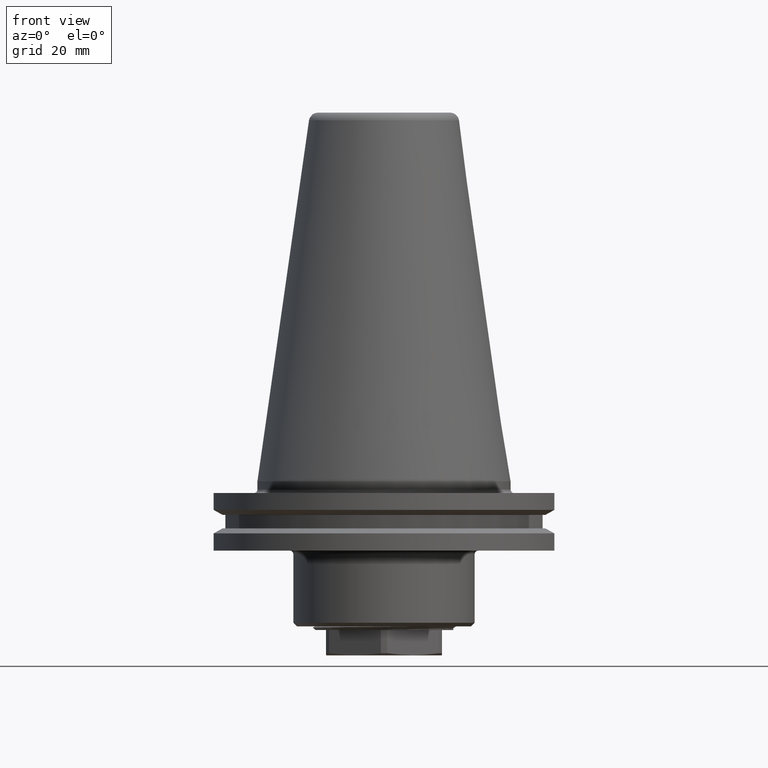
[diagram: clean part render]
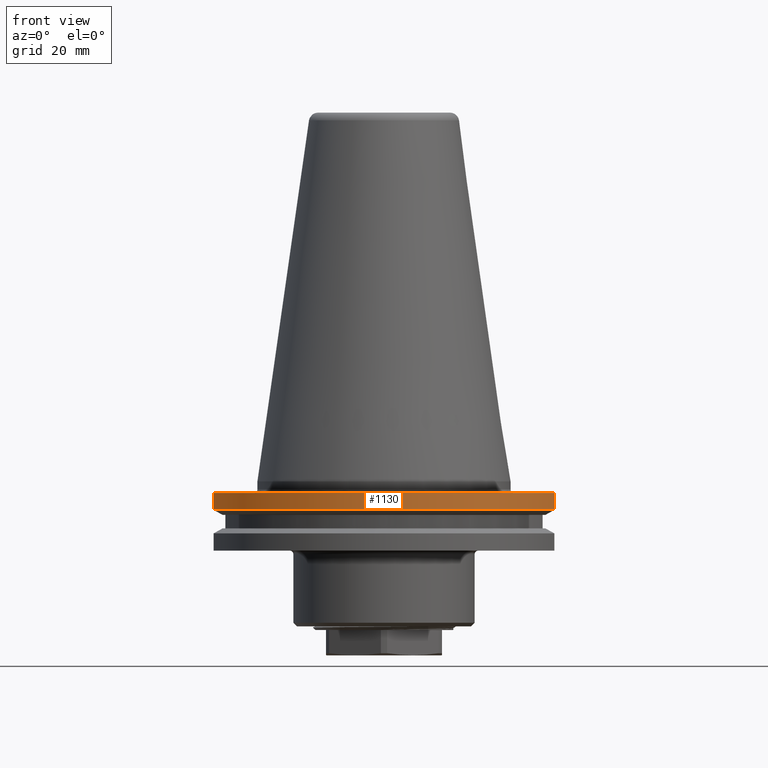
[diagram: same view with one face highlighted and labeled with its STEP entity id]
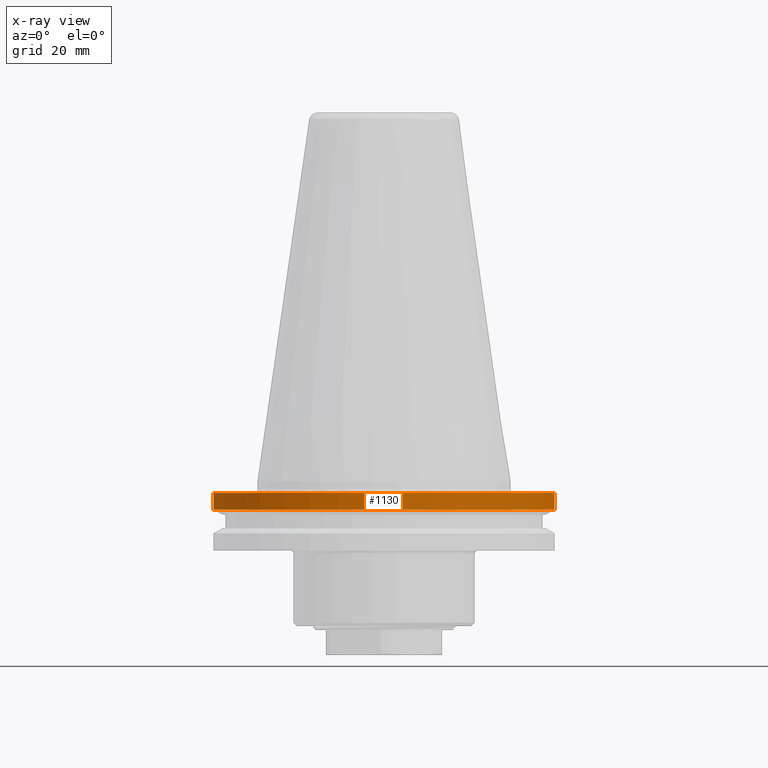
[diagram: x-ray of the same camera — body ghosted, the highlighted face saturated]
A machine part, front view. The second image highlights one B-rep face of the part: STEP entity #1130.
The next image is the same camera in x-ray: the body ghosted, the highlighted face saturated — about 0% of this face is hidden behind the body in this view.
In plain terms, the highlighted cylindrical surface (partial cylindrical patch) has radius 48.75 mm, axis along (0, 0, -1).
Its self-contained STEP definition (entity closure, byte-faithful):
#31=LINE('',#1713,#113);
#32=LINE('',#1717,#114);
#113=VECTOR('',#1374,1000.);
#114=VECTOR('',#1377,1000.);
#216=CYLINDRICAL_SURFACE('',#1223,48.75);
#276=ORIENTED_EDGE('',*,*,#595,.F.);
#277=ORIENTED_EDGE('',*,*,#597,.T.);
#278=ORIENTED_EDGE('',*,*,#598,.T.);
#279=ORIENTED_EDGE('',*,*,#599,.T.);
#595=EDGE_CURVE('',#755,#756,#865,.T.);
#597=EDGE_CURVE('',#755,#757,#31,.F.);
#598=EDGE_CURVE('',#757,#758,#866,.T.);
#599=EDGE_CURVE('',#758,#756,#32,.T.);
#755=VERTEX_POINT('',#1705);
#756=VERTEX_POINT('',#1707);
#757=VERTEX_POINT('',#1714);
#758=VERTEX_POINT('',#1716);
#865=CIRCLE('',#1222,48.75);
#866=CIRCLE('',#1224,48.75);
#923=EDGE_LOOP('',(#276,#277,#278,#279));
#1012=FACE_BOUND('',#923,.T.);
#1130=ADVANCED_FACE('',(#1012),#216,.T.);
#1222=AXIS2_PLACEMENT_3D('',#1706,#1370,#1371);
#1223=AXIS2_PLACEMENT_3D('',#1712,#1372,#1373);
#1224=AXIS2_PLACEMENT_3D('',#1715,#1375,#1376);
#1370=DIRECTION('',(0.,0.,-1.));
#1371=DIRECTION('',(-1.,0.,0.));
#1372=DIRECTION('',(0.,0.,-1.));
#1373=DIRECTION('',(-1.,0.,0.));
#1374=DIRECTION('',(0.,0.,-1.));
#1375=DIRECTION('',(0.,0.,-1.));
#1376=DIRECTION('',(-1.,0.,0.));
#1377=DIRECTION('',(0.,0.,-1.));
#1705=CARTESIAN_POINT('',(47.025950282796,-12.85,-7.85240473580835));
#1706=CARTESIAN_POINT('',(0.,0.,-7.85240473580835));
#1707=CARTESIAN_POINT('',(-47.025950282796,-12.85,-7.85240473580835));
#1712=CARTESIAN_POINT('',(0.,0.,-60.));
#1713=CARTESIAN_POINT('',(47.025950282796,-12.85,-60.));
#1714=CARTESIAN_POINT('',(47.025950282796,-12.85,-3.2));
#1715=CARTESIAN_POINT('',(0.,0.,-3.2));
#1716=CARTESIAN_POINT('',(-47.025950282796,-12.85,-3.2));
#1717=CARTESIAN_POINT('',(-47.025950282796,-12.85,-60.));